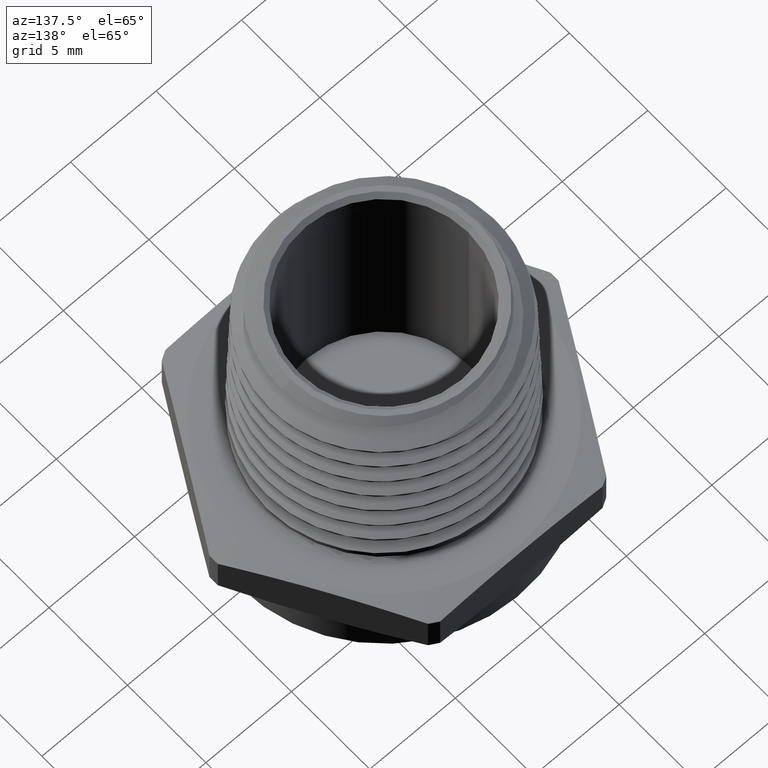
[diagram: clean part render]
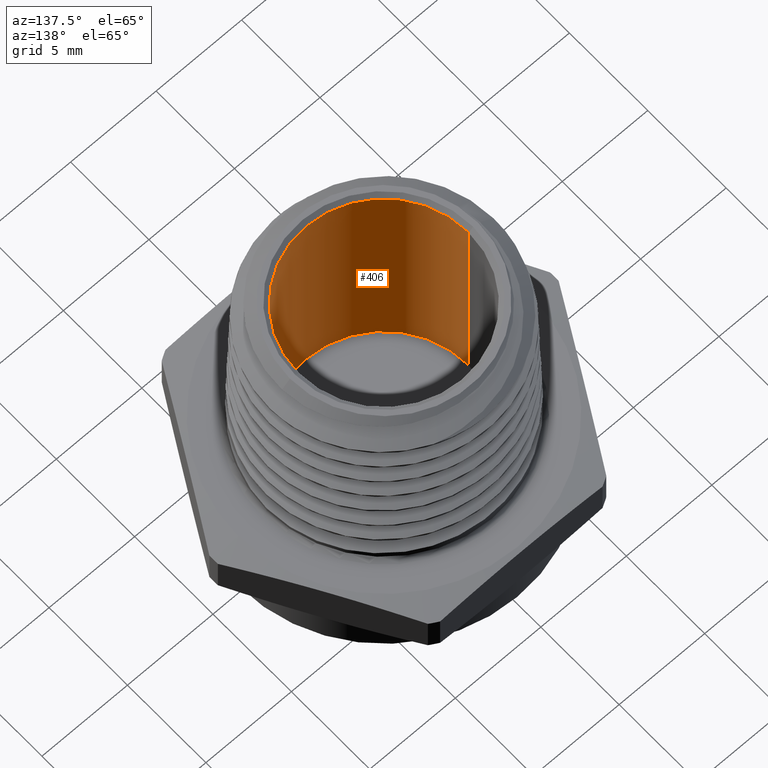
[diagram: same view with one face highlighted and labeled with its STEP entity id]
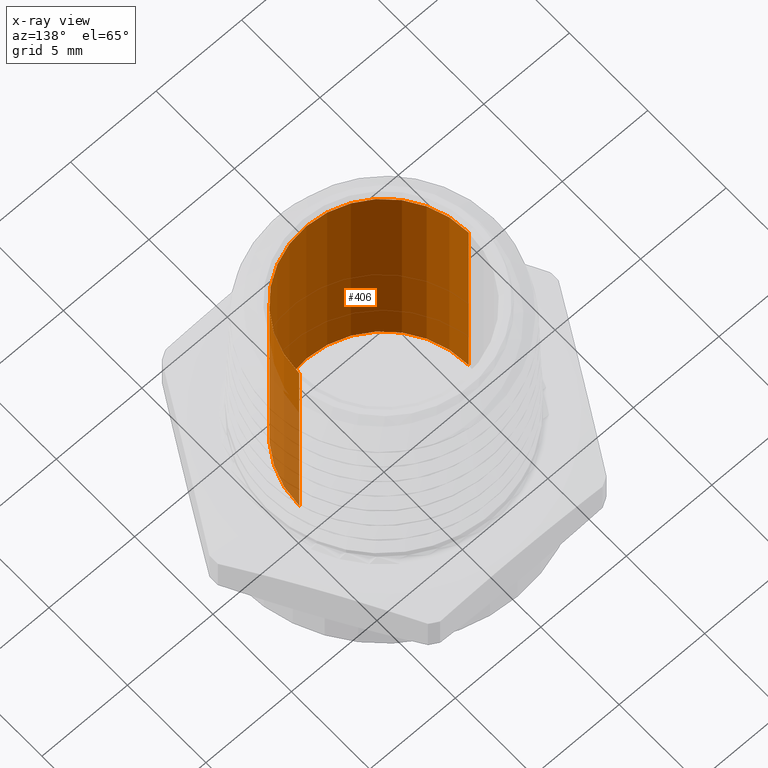
[diagram: x-ray of the same camera — body ghosted, the highlighted face saturated]
A machine part, auxiliary view. The second image highlights one B-rep face of the part: STEP entity #406.
The next image is the same camera in x-ray: the body ghosted, the highlighted face saturated — about 10% of this face is hidden behind the body in this view.
In plain terms, the highlighted cylindrical surface (partial cylindrical patch) has radius 4.953 mm, axis along (-0, -0, -1).
Its self-contained STEP definition (entity closure, byte-faithful):
#28 = EDGE_LOOP ( 'NONE', ( #740, #741, #742, #743 ) ) ;
#406 = ADVANCED_FACE ( 'NONE', ( #1047 ), #1090, .F. ) ;
#531 = EDGE_CURVE ( 'NONE', #1273, #870, #1158, .T. ) ;
#534 = EDGE_CURVE ( 'NONE', #1273, #863, #1166, .T. ) ;
#535 = EDGE_CURVE ( 'NONE', #863, #866, #1162, .T. ) ;
#536 = EDGE_CURVE ( 'NONE', #870, #866, #1170, .T. ) ;
#675 = AXIS2_PLACEMENT_3D ( 'NONE', #2730, #2731, #2729 ) ;
#698 = AXIS2_PLACEMENT_3D ( 'NONE', #3691, #3692, #3693 ) ;
#700 = AXIS2_PLACEMENT_3D ( 'NONE', #3703, #3704, #3705 ) ;
#740 = ORIENTED_EDGE ( 'NONE', *, *, #531, .F. ) ;
#741 = ORIENTED_EDGE ( 'NONE', *, *, #534, .T. ) ;
#742 = ORIENTED_EDGE ( 'NONE', *, *, #535, .T. ) ;
#743 = ORIENTED_EDGE ( 'NONE', *, *, #536, .F. ) ;
#863 = VERTEX_POINT ( 'NONE', #4113 ) ;
#866 = VERTEX_POINT ( 'NONE', #4137 ) ;
#870 = VERTEX_POINT ( 'NONE', #4136 ) ;
#1047 = FACE_OUTER_BOUND ( 'NONE', #28, .T. ) ;
#1090 = CYLINDRICAL_SURFACE ( 'NONE', #675, 0.1949999999999999800 ) ;
#1158 = CIRCLE ( 'NONE', #698, 0.1949999999999999800 ) ;
#1162 = CIRCLE ( 'NONE', #700, 0.1949999999999999200 ) ;
#1166 = LINE ( 'NONE', #3698, #1169 ) ;
#1169 = VECTOR ( 'NONE', #3700, 39.37007874015748100 ) ;
#1170 = LINE ( 'NONE', #3699, #1172 ) ;
#1172 = VECTOR ( 'NONE', #3694, 39.37007874015748100 ) ;
#1273 = VERTEX_POINT ( 'NONE', #4236 ) ;
#2729 = DIRECTION ( 'NONE',  ( -1.000000000000000000, 0.0000000000000000000, 8.755923056616229400E-017 ) ) ;
#2730 = CARTESIAN_POINT ( 'NONE',  ( -3.414809992080329000E-017, 0.0000000000000000000, -0.1000000000000000100 ) ) ;
#2731 = DIRECTION ( 'NONE',  ( -1.224646799147353200E-016, -0.0000000000000000000, -1.000000000000000000 ) ) ;
#3691 = CARTESIAN_POINT ( 'NONE',  ( 4.667858882292200900E-017, 0.0000000000000000000, 0.5599999999999999400 ) ) ;
#3692 = DIRECTION ( 'NONE',  ( -1.224646799147353200E-016, -0.0000000000000000000, -1.000000000000000000 ) ) ;
#3693 = DIRECTION ( 'NONE',  ( -1.000000000000000000, 0.0000000000000000000, 0.0000000000000000000 ) ) ;
#3694 = DIRECTION ( 'NONE',  ( -1.224646799147353200E-016, -0.0000000000000000000, -1.000000000000000000 ) ) ;
#3698 = CARTESIAN_POINT ( 'NONE',  ( 0.1949999999999999200, 2.388061258337338400E-017, -0.1000000000000000200 ) ) ;
#3699 = CARTESIAN_POINT ( 'NONE',  ( -0.1950000000000000100, 0.0000000000000000000, -0.09999999999999999200 ) ) ;
#3700 = DIRECTION ( 'NONE',  ( -1.224646799147353200E-016, -0.0000000000000000000, -1.000000000000000000 ) ) ;
#3703 = CARTESIAN_POINT ( 'NONE',  ( -1.845912084826200200E-017, 0.0000000000000000000, 0.02811023622047243200 ) ) ;
#3704 = DIRECTION ( 'NONE',  ( -1.224646799147353200E-016, -0.0000000000000000000, -1.000000000000000000 ) ) ;
#3705 = DIRECTION ( 'NONE',  ( -1.000000000000000000, 0.0000000000000000000, 1.313388458492434700E-016 ) ) ;
#4113 = CARTESIAN_POINT ( 'NONE',  ( 0.1949999999999999000, 2.388061258337338400E-017, 0.02811023622047240800 ) ) ;
#4136 = CARTESIAN_POINT ( 'NONE',  ( -0.1949999999999999200, 0.0000000000000000000, 0.5599999999999999400 ) ) ;
#4137 = CARTESIAN_POINT ( 'NONE',  ( -0.1949999999999999800, 0.0000000000000000000, 0.02811023622047246000 ) ) ;
#4236 = CARTESIAN_POINT ( 'NONE',  ( 0.1950000000000000100, 2.388061258337338700E-017, 0.5599999999999999400 ) ) ;